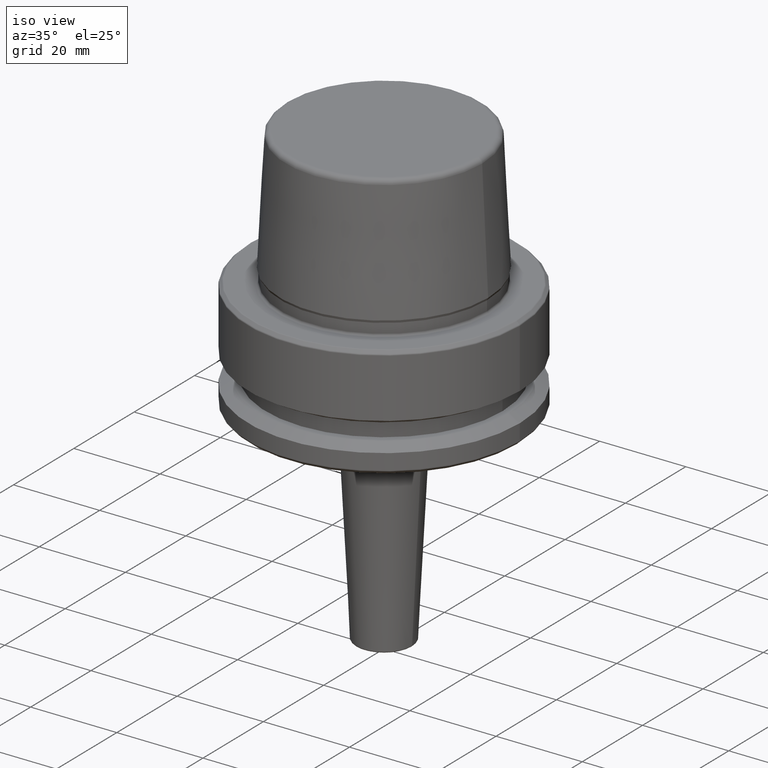
[diagram: clean part render]
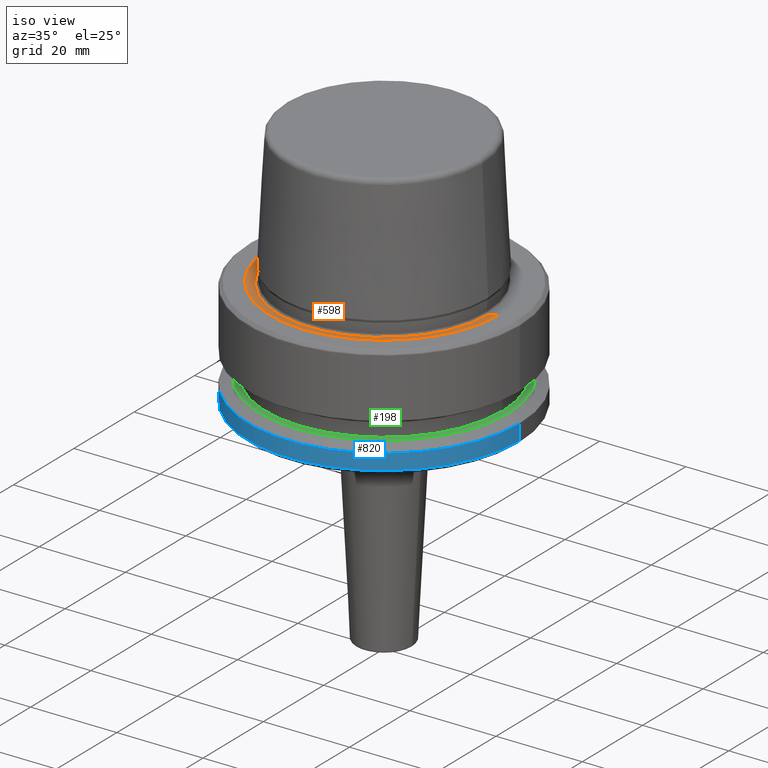
[diagram: same view with three faces highlighted in distinct colors, each labeled with its STEP entity id]
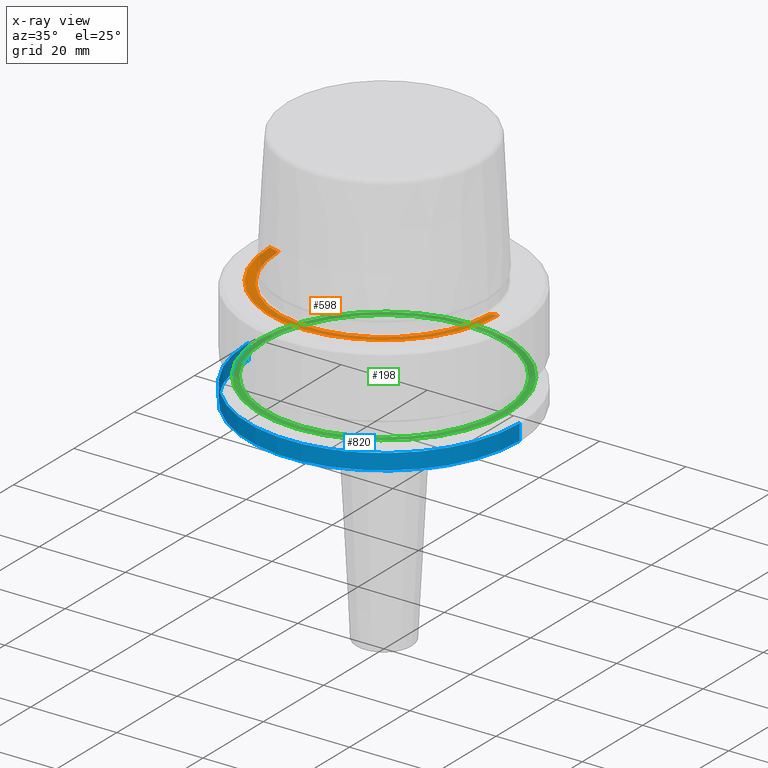
[diagram: x-ray of the same camera — body ghosted, the three highlighted faces saturated]
A machine part, iso view with three faces highlighted in distinct colors.
The next image is the same camera in x-ray (body ghosted, the three faces saturated) — at least one of them is partly hidden behind the body in this view.
Their STEP definitions:

[orange] entity #598 — the highlighted conical surface has half-angle 80 deg.
#22 = ORIENTED_EDGE ( 'NONE', *, *, #936, .T. ) ;
#38 = CARTESIAN_POINT ( 'NONE',  ( 24.47682408883346700, 0.0000000000000000000, -0.3611486743758107700 ) ) ;
#58 = DIRECTION ( 'NONE',  ( -0.0000000000000000000, -0.0000000000000000000, 1.000000000000000000 ) ) ;
#98 = CARTESIAN_POINT ( 'NONE',  ( -26.52499999999999900, 3.248375634738354300E-015, 0.0000000000000000000 ) ) ;
#174 = CIRCLE ( 'NONE', #609, 24.47682408883346700 ) ;
#195 = ORIENTED_EDGE ( 'NONE', *, *, #1083, .F. ) ;
#196 = LINE ( 'NONE', #98, #1230 ) ;
#225 = DIRECTION ( 'NONE',  ( -0.0000000000000000000, -0.0000000000000000000, 1.000000000000000000 ) ) ;
#241 = DIRECTION ( 'NONE',  ( -0.0000000000000000000, -0.0000000000000000000, 1.000000000000000000 ) ) ;
#255 = CARTESIAN_POINT ( 'NONE',  ( -24.47682408883346700, 3.122961031053313900E-015, -0.3611486743758107700 ) ) ;
#300 = LINE ( 'NONE', #914, #525 ) ;
#317 = DIRECTION ( 'NONE',  ( 1.000000000000000000, 0.0000000000000000000, 0.0000000000000000000 ) ) ;
#379 = CIRCLE ( 'NONE', #590, 26.52499999999999900 ) ;
#422 = CONICAL_SURFACE ( 'NONE', #479, 26.52499999999999900, 1.396263401595460500 ) ;
#428 = DIRECTION ( 'NONE',  ( 0.9848077530122074700, 0.0000000000000000000, 0.1736481776669334700 ) ) ;
#479 = AXIS2_PLACEMENT_3D ( 'NONE', #707, #225, #317 ) ;
#525 = VECTOR ( 'NONE', #428, 1000.000000000000200 ) ;
#533 = VERTEX_POINT ( 'NONE', #255 ) ;
#590 = AXIS2_PLACEMENT_3D ( 'NONE', #640, #58, #735 ) ;
#598 = ADVANCED_FACE ( 'NONE', ( #972 ), #422, .F. ) ;
#609 = AXIS2_PLACEMENT_3D ( 'NONE', #816, #241, #919 ) ;
#616 = CARTESIAN_POINT ( 'NONE',  ( 26.52499999999999900, 0.0000000000000000000, 0.0000000000000000000 ) ) ;
#625 = EDGE_CURVE ( 'NONE', #533, #636, #174, .T. ) ;
#636 = VERTEX_POINT ( 'NONE', #38 ) ;
#640 = CARTESIAN_POINT ( 'NONE',  ( 0.0000000000000000000, 0.0000000000000000000, 0.0000000000000000000 ) ) ;
#707 = CARTESIAN_POINT ( 'NONE',  ( 0.0000000000000000000, 0.0000000000000000000, 0.0000000000000000000 ) ) ;
#735 = DIRECTION ( 'NONE',  ( 1.000000000000000000, 0.0000000000000000000, 0.0000000000000000000 ) ) ;
#743 = VERTEX_POINT ( 'NONE', #805 ) ;
#749 = ORIENTED_EDGE ( 'NONE', *, *, #811, .T. ) ;
#779 = DIRECTION ( 'NONE',  ( -0.9848077530122074700, 1.206041662501897100E-016, 0.1736481776669334700 ) ) ;
#783 = VERTEX_POINT ( 'NONE', #616 ) ;
#805 = CARTESIAN_POINT ( 'NONE',  ( -26.52499999999999900, 3.248375634738354300E-015, 0.0000000000000000000 ) ) ;
#811 = EDGE_CURVE ( 'NONE', #743, #783, #379, .T. ) ;
#816 = CARTESIAN_POINT ( 'NONE',  ( 0.0000000000000000000, 0.0000000000000000000, -0.3611486743758107700 ) ) ;
#871 = ORIENTED_EDGE ( 'NONE', *, *, #625, .F. ) ;
#914 = CARTESIAN_POINT ( 'NONE',  ( 26.52499999999999900, 0.0000000000000000000, 0.0000000000000000000 ) ) ;
#919 = DIRECTION ( 'NONE',  ( 1.000000000000000000, 0.0000000000000000000, 0.0000000000000000000 ) ) ;
#936 = EDGE_CURVE ( 'NONE', #533, #743, #196, .T. ) ;
#963 = EDGE_LOOP ( 'NONE', ( #871, #22, #749, #195 ) ) ;
#972 = FACE_OUTER_BOUND ( 'NONE', #963, .T. ) ;
#1083 = EDGE_CURVE ( 'NONE', #636, #783, #300, .T. ) ;
#1230 = VECTOR ( 'NONE', #779, 1000.000000000000200 ) ;

[blue] entity #820 — the highlighted cylindrical surface (partial cylindrical patch) has radius 31.5 mm, axis along (-0, -0, 1).
#35 = DIRECTION ( 'NONE',  ( 1.000000000000000000, 0.0000000000000000000, 0.0000000000000000000 ) ) ;
#66 = CIRCLE ( 'NONE', #476, 31.50000000000000000 ) ;
#103 = VERTEX_POINT ( 'NONE', #155 ) ;
#121 = ORIENTED_EDGE ( 'NONE', *, *, #847, .F. ) ;
#150 = FACE_OUTER_BOUND ( 'NONE', #615, .T. ) ;
#155 = CARTESIAN_POINT ( 'NONE',  ( -31.50000000000000000, 3.857637417314161900E-015, -25.03431457505077200 ) ) ;
#161 = DIRECTION ( 'NONE',  ( -0.0000000000000000000, -0.0000000000000000000, 1.000000000000000000 ) ) ;
#173 = EDGE_CURVE ( 'NONE', #389, #259, #641, .T. ) ;
#190 = CARTESIAN_POINT ( 'NONE',  ( 31.50000000000000000, 0.0000000000000000000, -21.37749907475931700 ) ) ;
#259 = VERTEX_POINT ( 'NONE', #190 ) ;
#267 = DIRECTION ( 'NONE',  ( -0.0000000000000000000, -0.0000000000000000000, 1.000000000000000000 ) ) ;
#311 = AXIS2_PLACEMENT_3D ( 'NONE', #565, #1241, #660 ) ;
#343 = CARTESIAN_POINT ( 'NONE',  ( -31.50000000000000000, 3.857637417314162700E-015, -21.37749907475931700 ) ) ;
#344 = DIRECTION ( 'NONE',  ( -0.0000000000000000000, -0.0000000000000000000, 1.000000000000000000 ) ) ;
#382 = ORIENTED_EDGE ( 'NONE', *, *, #966, .T. ) ;
#389 = VERTEX_POINT ( 'NONE', #1248 ) ;
#399 = ORIENTED_EDGE ( 'NONE', *, *, #1234, .F. ) ;
#448 = CARTESIAN_POINT ( 'NONE',  ( -31.50000000000000000, 3.857637417314162700E-015, 78.96908074195309300 ) ) ;
#476 = AXIS2_PLACEMENT_3D ( 'NONE', #1192, #610, #35 ) ;
#565 = CARTESIAN_POINT ( 'NONE',  ( 0.0000000000000000000, 0.0000000000000000000, -25.03431457505077200 ) ) ;
#610 = DIRECTION ( 'NONE',  ( -0.0000000000000000000, -0.0000000000000000000, 1.000000000000000000 ) ) ;
#615 = EDGE_LOOP ( 'NONE', ( #121, #382, #1054, #399 ) ) ;
#631 = VECTOR ( 'NONE', #267, 1000.000000000000000 ) ;
#641 = LINE ( 'NONE', #1208, #1126 ) ;
#660 = DIRECTION ( 'NONE',  ( 1.000000000000000000, 0.0000000000000000000, 0.0000000000000000000 ) ) ;
#786 = AXIS2_PLACEMENT_3D ( 'NONE', #1122, #161, #835 ) ;
#820 = ADVANCED_FACE ( 'NONE', ( #150 ), #1118, .T. ) ;
#835 = DIRECTION ( 'NONE',  ( 1.000000000000000000, 0.0000000000000000000, 0.0000000000000000000 ) ) ;
#847 = EDGE_CURVE ( 'NONE', #103, #1206, #889, .T. ) ;
#889 = LINE ( 'NONE', #448, #631 ) ;
#907 = CIRCLE ( 'NONE', #311, 31.50000000000000000 ) ;
#966 = EDGE_CURVE ( 'NONE', #103, #389, #907, .T. ) ;
#1054 = ORIENTED_EDGE ( 'NONE', *, *, #173, .T. ) ;
#1118 = CYLINDRICAL_SURFACE ( 'NONE', #786, 31.50000000000000000 ) ;
#1122 = CARTESIAN_POINT ( 'NONE',  ( 0.0000000000000000000, 0.0000000000000000000, 78.96908074195309300 ) ) ;
#1126 = VECTOR ( 'NONE', #344, 1000.000000000000000 ) ;
#1192 = CARTESIAN_POINT ( 'NONE',  ( 0.0000000000000000000, 0.0000000000000000000, -21.37749907475931700 ) ) ;
#1206 = VERTEX_POINT ( 'NONE', #343 ) ;
#1208 = CARTESIAN_POINT ( 'NONE',  ( 31.50000000000000000, 0.0000000000000000000, 78.96908074195309300 ) ) ;
#1234 = EDGE_CURVE ( 'NONE', #1206, #259, #66, .T. ) ;
#1241 = DIRECTION ( 'NONE',  ( -0.0000000000000000000, -0.0000000000000000000, 1.000000000000000000 ) ) ;
#1248 = CARTESIAN_POINT ( 'NONE',  ( 31.50000000000000000, 0.0000000000000000000, -25.03431457505077200 ) ) ;

[green] entity #198 — the highlighted planar face has unit normal (0, 0, -1).
#16 = VERTEX_POINT ( 'NONE', #1197 ) ;
#72 = ORIENTED_EDGE ( 'NONE', *, *, #1044, .T. ) ;
#198 = ADVANCED_FACE ( 'NONE', ( #760, #1062 ), #698, .F. ) ;
#211 = DIRECTION ( 'NONE',  ( -1.000000000000000000, 0.0000000000000000000, -0.0000000000000000000 ) ) ;
#223 = CARTESIAN_POINT ( 'NONE',  ( 28.94089653438085100, 3.700937523921292900E-015, -19.90000000000001600 ) ) ;
#230 = DIRECTION ( 'NONE',  ( -0.0000000000000000000, -0.0000000000000000000, 1.000000000000000000 ) ) ;
#231 = CARTESIAN_POINT ( 'NONE',  ( 0.0000000000000000000, 0.0000000000000000000, -19.90000000000001600 ) ) ;
#235 = DIRECTION ( 'NONE',  ( -0.0000000000000000000, -0.0000000000000000000, 1.000000000000000000 ) ) ;
#270 = ORIENTED_EDGE ( 'NONE', *, *, #1258, .F. ) ;
#296 = CIRCLE ( 'NONE', #600, 27.49999999999999600 ) ;
#319 = DIRECTION ( 'NONE',  ( -0.0000000000000000000, -0.0000000000000000000, 1.000000000000000000 ) ) ;
#326 = DIRECTION ( 'NONE',  ( 1.000000000000000000, 0.0000000000000000000, 0.0000000000000000000 ) ) ;
#366 = CIRCLE ( 'NONE', #761, 28.94089653438085100 ) ;
#459 = EDGE_LOOP ( 'NONE', ( #545, #270 ) ) ;
#485 = CIRCLE ( 'NONE', #1199, 27.49999999999999600 ) ;
#503 = VERTEX_POINT ( 'NONE', #553 ) ;
#545 = ORIENTED_EDGE ( 'NONE', *, *, #733, .F. ) ;
#553 = CARTESIAN_POINT ( 'NONE',  ( -27.49999999999999600, 3.367778697655220900E-015, -19.90000000000001600 ) ) ;
#589 = CARTESIAN_POINT ( 'NONE',  ( 0.0000000000000000000, 27.49999999999999600, -19.90000000000000900 ) ) ;
#600 = AXIS2_PLACEMENT_3D ( 'NONE', #810, #235, #913 ) ;
#629 = EDGE_LOOP ( 'NONE', ( #72, #1136 ) ) ;
#638 = AXIS2_PLACEMENT_3D ( 'NONE', #901, #319, #999 ) ;
#698 = PLANE ( 'NONE',  #987 ) ;
#733 = EDGE_CURVE ( 'NONE', #993, #503, #485, .T. ) ;
#760 = FACE_BOUND ( 'NONE', #459, .T. ) ;
#761 = AXIS2_PLACEMENT_3D ( 'NONE', #803, #230, #908 ) ;
#784 = DIRECTION ( 'NONE',  ( 0.0000000000000000000, 0.0000000000000000000, -1.000000000000000000 ) ) ;
#803 = CARTESIAN_POINT ( 'NONE',  ( 0.0000000000000000000, 0.0000000000000000000, -19.90000000000001600 ) ) ;
#810 = CARTESIAN_POINT ( 'NONE',  ( 0.0000000000000000000, 0.0000000000000000000, -19.90000000000001600 ) ) ;
#874 = CIRCLE ( 'NONE', #638, 28.94089653438085100 ) ;
#901 = CARTESIAN_POINT ( 'NONE',  ( 0.0000000000000000000, 0.0000000000000000000, -19.90000000000001600 ) ) ;
#908 = DIRECTION ( 'NONE',  ( 1.000000000000000000, 0.0000000000000000000, 0.0000000000000000000 ) ) ;
#910 = DIRECTION ( 'NONE',  ( -0.0000000000000000000, -0.0000000000000000000, 1.000000000000000000 ) ) ;
#913 = DIRECTION ( 'NONE',  ( 1.000000000000000000, 0.0000000000000000000, 0.0000000000000000000 ) ) ;
#987 = AXIS2_PLACEMENT_3D ( 'NONE', #589, #784, #211 ) ;
#993 = VERTEX_POINT ( 'NONE', #1061 ) ;
#999 = DIRECTION ( 'NONE',  ( 1.000000000000000000, 0.0000000000000000000, 0.0000000000000000000 ) ) ;
#1010 = EDGE_CURVE ( 'NONE', #1063, #16, #874, .T. ) ;
#1044 = EDGE_CURVE ( 'NONE', #16, #1063, #366, .T. ) ;
#1061 = CARTESIAN_POINT ( 'NONE',  ( 27.49999999999999600, 0.0000000000000000000, -19.90000000000001600 ) ) ;
#1062 = FACE_OUTER_BOUND ( 'NONE', #629, .T. ) ;
#1063 = VERTEX_POINT ( 'NONE', #223 ) ;
#1136 = ORIENTED_EDGE ( 'NONE', *, *, #1010, .T. ) ;
#1197 = CARTESIAN_POINT ( 'NONE',  ( -28.94089653438085100, 0.0000000000000000000, -19.90000000000001600 ) ) ;
#1199 = AXIS2_PLACEMENT_3D ( 'NONE', #231, #910, #326 ) ;
#1258 = EDGE_CURVE ( 'NONE', #503, #993, #296, .T. ) ;